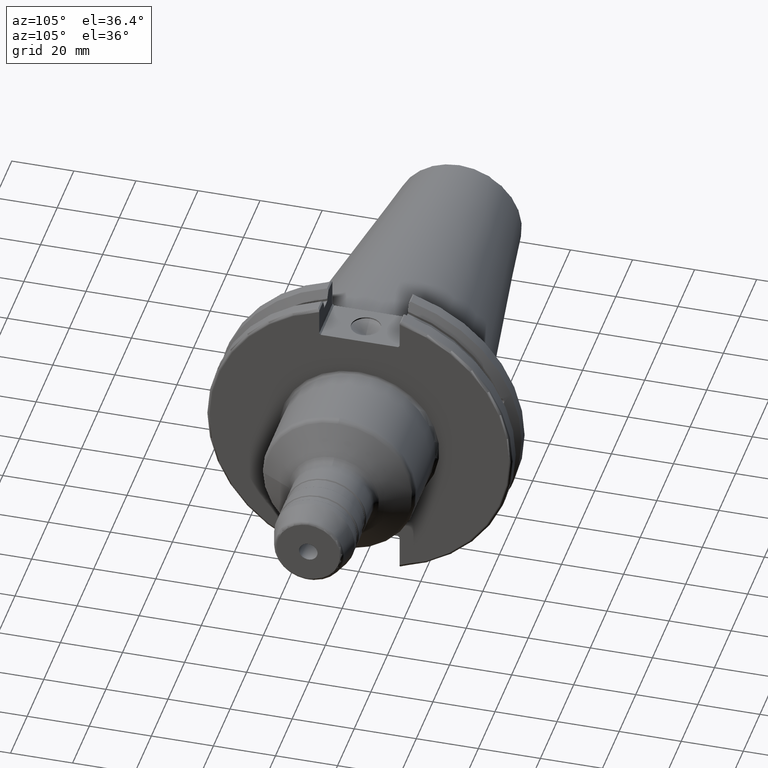
[diagram: clean part render]
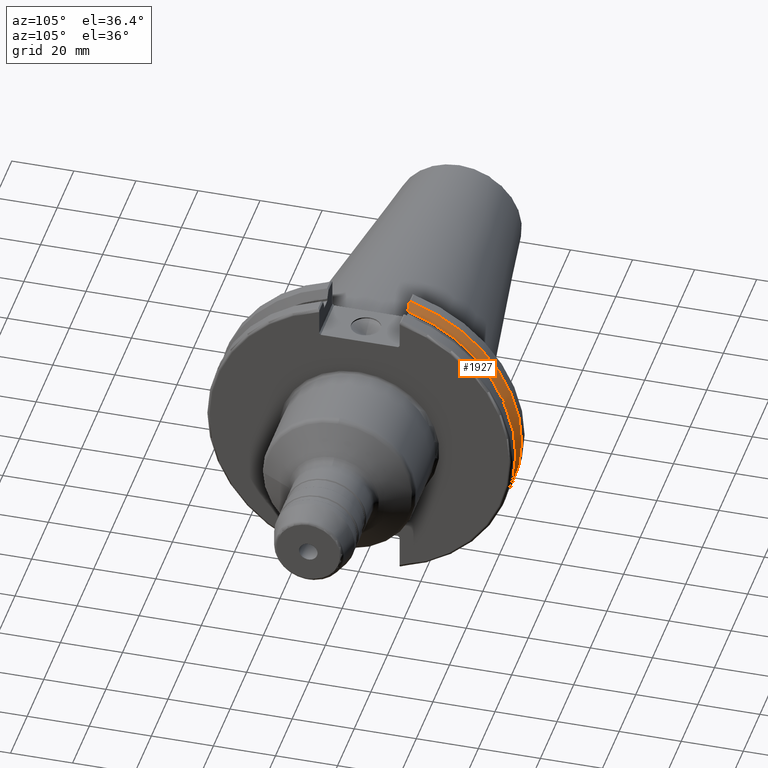
[diagram: same view with one face highlighted and labeled with its STEP entity id]
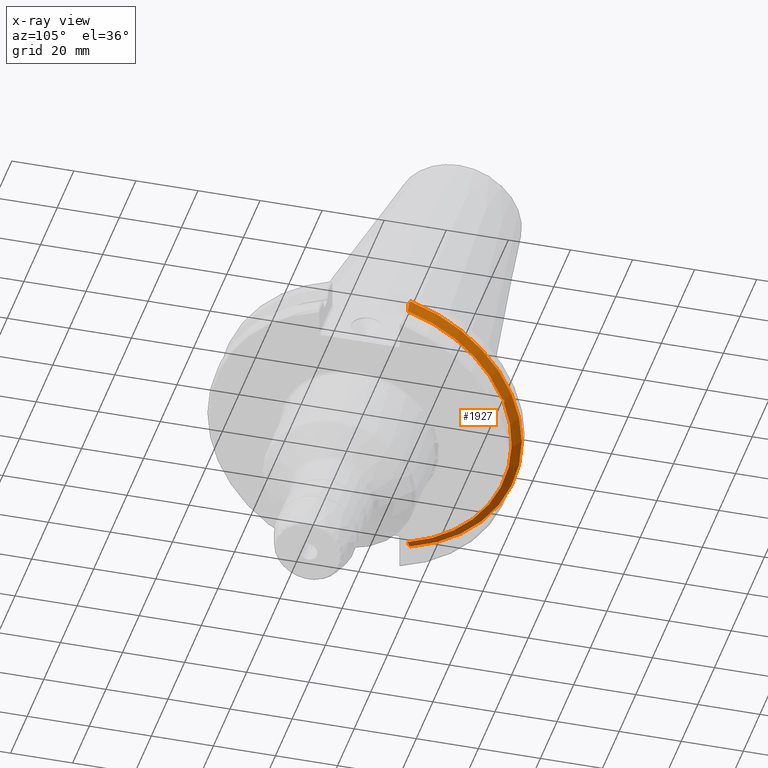
[diagram: x-ray of the same camera — body ghosted, the highlighted face saturated]
A machine part, auxiliary view. The second image highlights one B-rep face of the part: STEP entity #1927.
The next image is the same camera in x-ray: the body ghosted, the highlighted face saturated — about 0% of this face is hidden behind the body in this view.
In plain terms, the highlighted conical surface has half-angle 60 deg.
Its self-contained STEP definition (entity closure, byte-faithful):
#23=(
BOUNDED_CURVE()
B_SPLINE_CURVE(2,(#3621,#3622,#3623),.UNSPECIFIED.,.F.,.F.)
B_SPLINE_CURVE_WITH_KNOTS((3,3),(0.,0.275823910675371),.UNSPECIFIED.)
CURVE()
GEOMETRIC_REPRESENTATION_ITEM()
RATIONAL_B_SPLINE_CURVE((1.,1.00038235575501,1.00012873637129))
REPRESENTATION_ITEM('')
);
#28=(
BOUNDED_CURVE()
B_SPLINE_CURVE(2,(#3763,#3764,#3765),.UNSPECIFIED.,.F.,.F.)
B_SPLINE_CURVE_WITH_KNOTS((3,3),(0.,0.0648240472898098),.UNSPECIFIED.)
CURVE()
GEOMETRIC_REPRESENTATION_ITEM()
RATIONAL_B_SPLINE_CURVE((1.,1.00011477674852,1.00019140645975))
REPRESENTATION_ITEM('')
);
#29=(
BOUNDED_CURVE()
B_SPLINE_CURVE(2,(#3794,#3795,#3796),.UNSPECIFIED.,.F.,.F.)
B_SPLINE_CURVE_WITH_KNOTS((3,3),(0.0558332664507334,0.331657177124507),
 .UNSPECIFIED.)
CURVE()
GEOMETRIC_REPRESENTATION_ITEM()
RATIONAL_B_SPLINE_CURVE((1.00012873636786,1.0003823557448,1.))
REPRESENTATION_ITEM('')
);
#30=(
BOUNDED_CURVE()
B_SPLINE_CURVE(2,(#3811,#3812,#3813),.UNSPECIFIED.,.F.,.F.)
B_SPLINE_CURVE_WITH_KNOTS((3,3),(0.325260944932395,0.390084992222207),
 .UNSPECIFIED.)
CURVE()
GEOMETRIC_REPRESENTATION_ITEM()
RATIONAL_B_SPLINE_CURVE((1.00019140645963,1.00011477674845,1.))
REPRESENTATION_ITEM('')
);
#128=B_SPLINE_CURVE_WITH_KNOTS('',3,(#3434,#3435,#3436,#3437,#3438,#3439,
#3440,#3441,#3442,#3443,#3444,#3445,#3446,#3447),.UNSPECIFIED.,.F.,.F.,
(4,2,2,2,2,2,4),(0.426712868358719,0.441644498666906,0.48031331322313,0.518982127779354,
0.557650942335578,0.596319756891802,0.611251387199987),.UNSPECIFIED.);
#162=CONICAL_SURFACE('',#2181,47.8172386482472,1.0471975511966);
#261=FACE_OUTER_BOUND('',#387,.T.);
#387=EDGE_LOOP('',(#1740,#1741,#1742,#1743,#1744,#1745,#1746,#1747));
#704=CIRCLE('',#2114,46.4219772964944);
#728=CIRCLE('',#2172,49.2125);
#731=CIRCLE('',#2182,46.4219772964944);
#855=VERTEX_POINT('',#3431);
#856=VERTEX_POINT('',#3433);
#868=VERTEX_POINT('',#3508);
#897=VERTEX_POINT('',#3618);
#898=VERTEX_POINT('',#3620);
#919=VERTEX_POINT('',#3761);
#925=VERTEX_POINT('',#3793);
#926=VERTEX_POINT('',#3803);
#1092=EDGE_CURVE('',#856,#855,#128,.T.);
#1108=EDGE_CURVE('',#856,#868,#704,.T.);
#1149=EDGE_CURVE('',#898,#897,#23,.T.);
#1184=EDGE_CURVE('',#919,#897,#28,.T.);
#1198=EDGE_CURVE('',#925,#868,#29,.T.);
#1203=EDGE_CURVE('',#919,#926,#728,.T.);
#1205=EDGE_CURVE('',#925,#926,#30,.T.);
#1210=EDGE_CURVE('',#898,#855,#731,.T.);
#1740=ORIENTED_EDGE('',*,*,#1092,.T.);
#1741=ORIENTED_EDGE('',*,*,#1210,.F.);
#1742=ORIENTED_EDGE('',*,*,#1149,.T.);
#1743=ORIENTED_EDGE('',*,*,#1184,.F.);
#1744=ORIENTED_EDGE('',*,*,#1203,.T.);
#1745=ORIENTED_EDGE('',*,*,#1205,.F.);
#1746=ORIENTED_EDGE('',*,*,#1198,.T.);
#1747=ORIENTED_EDGE('',*,*,#1108,.F.);
#1927=ADVANCED_FACE('',(#261),#162,.T.);
#2114=AXIS2_PLACEMENT_3D('',#3509,#2557,#2558);
#2172=AXIS2_PLACEMENT_3D('',#3805,#2720,#2721);
#2181=AXIS2_PLACEMENT_3D('',#3823,#2741,#2742);
#2182=AXIS2_PLACEMENT_3D('',#3824,#2743,#2744);
#2557=DIRECTION('center_axis',(1.,0.,0.));
#2558=DIRECTION('ref_axis',(0.,0.,-1.));
#2720=DIRECTION('center_axis',(1.,0.,0.));
#2721=DIRECTION('ref_axis',(0.,0.,-1.));
#2741=DIRECTION('center_axis',(-1.,0.,0.));
#2742=DIRECTION('ref_axis',(0.,1.,0.));
#2743=DIRECTION('center_axis',(1.,0.,0.));
#2744=DIRECTION('ref_axis',(0.,0.,-1.));
#3431=CARTESIAN_POINT('',(9.21910000000001,43.9096390749305,15.0646464421033));
#3433=CARTESIAN_POINT('',(9.2191,43.3201030900029,16.684383248648));
#3434=CARTESIAN_POINT('Ctrl Pts',(9.21910000000001,43.3201030900028,16.6843832486479));
#3435=CARTESIAN_POINT('Ctrl Pts',(9.20211843903392,43.361310694134,16.6592273018006));
#3436=CARTESIAN_POINT('Ctrl Pts',(9.18608675403322,43.4012416983557,16.6326763251437));
#3437=CARTESIAN_POINT('Ctrl Pts',(9.13238673845037,43.539103734322,16.5325130832406));
#3438=CARTESIAN_POINT('Ctrl Pts',(9.09621610663555,43.6406982153492,16.4411807953719));
#3439=CARTESIAN_POINT('Ctrl Pts',(9.04690868251975,43.8110833825827,16.2291323464527));
#3440=CARTESIAN_POINT('Ctrl Pts',(9.0341,43.8794096049168,16.10796730316));
#3441=CARTESIAN_POINT('Ctrl Pts',(9.03409999999999,43.9675796948952,15.8657219718732));
#3442=CARTESIAN_POINT('Ctrl Pts',(9.04690868251975,43.9931221605126,15.7289849146254));
#3443=CARTESIAN_POINT('Ctrl Pts',(9.09621610663555,43.9989016655819,15.4570249042867));
#3444=CARTESIAN_POINT('Ctrl Pts',(9.13238673845037,43.9797830409458,15.3217566390708));
#3445=CARTESIAN_POINT('Ctrl Pts',(9.18608675403322,43.9385582852181,15.1564111356409));
#3446=CARTESIAN_POINT('Ctrl Pts',(9.20211843903391,43.9250360001461,15.1104047527575));
#3447=CARTESIAN_POINT('Ctrl Pts',(9.2191,43.9096390749305,15.0646464421033));
#3508=CARTESIAN_POINT('',(9.2191,12.95,44.5791147973604));
#3509=CARTESIAN_POINT('Origin',(9.2191,0.,0.));
#3618=CARTESIAN_POINT('',(7.88638960562424,12.95,-46.9780755322918));
#3620=CARTESIAN_POINT('',(9.2191,12.95,-44.5791147973604));
#3621=CARTESIAN_POINT('Ctrl Pts',(9.2191,12.95,-44.5791147973604));
#3622=CARTESIAN_POINT('Ctrl Pts',(8.57020449055505,12.95,-45.7494966802211));
#3623=CARTESIAN_POINT('Ctrl Pts',(7.88638960562424,12.95,-46.9780755322917));
#3761=CARTESIAN_POINT('',(7.60799096595127,13.4317035994433,-47.3440544806494));
#3763=CARTESIAN_POINT('Ctrl Pts',(7.60799096595127,13.4317035994433,-47.3440544806494));
#3764=CARTESIAN_POINT('Ctrl Pts',(7.74826896663819,13.1896660169966,-47.1601640966264));
#3765=CARTESIAN_POINT('Ctrl Pts',(7.88638960562424,12.95,-46.9780755322918));
#3793=CARTESIAN_POINT('',(7.88638960562424,12.95,46.9780755322918));
#3794=CARTESIAN_POINT('Ctrl Pts',(7.88638960562424,12.95,46.9780755322918));
#3795=CARTESIAN_POINT('Ctrl Pts',(8.57020449054228,12.95,45.7494966802441));
#3796=CARTESIAN_POINT('Ctrl Pts',(9.2191,12.95,44.5791147973604));
#3803=CARTESIAN_POINT('',(7.60799096595127,13.4317035994433,47.3440544806494));
#3805=CARTESIAN_POINT('Origin',(7.60799096595127,0.,0.));
#3811=CARTESIAN_POINT('Ctrl Pts',(7.88638960562424,12.95,46.9780755322918));
#3812=CARTESIAN_POINT('Ctrl Pts',(7.74826896663818,13.1896660169966,47.1601640966265));
#3813=CARTESIAN_POINT('Ctrl Pts',(7.60799096595127,13.4317035994433,47.3440544806494));
#3823=CARTESIAN_POINT('Origin',(8.41354548297563,0.,0.));
#3824=CARTESIAN_POINT('Origin',(9.2191,0.,0.));